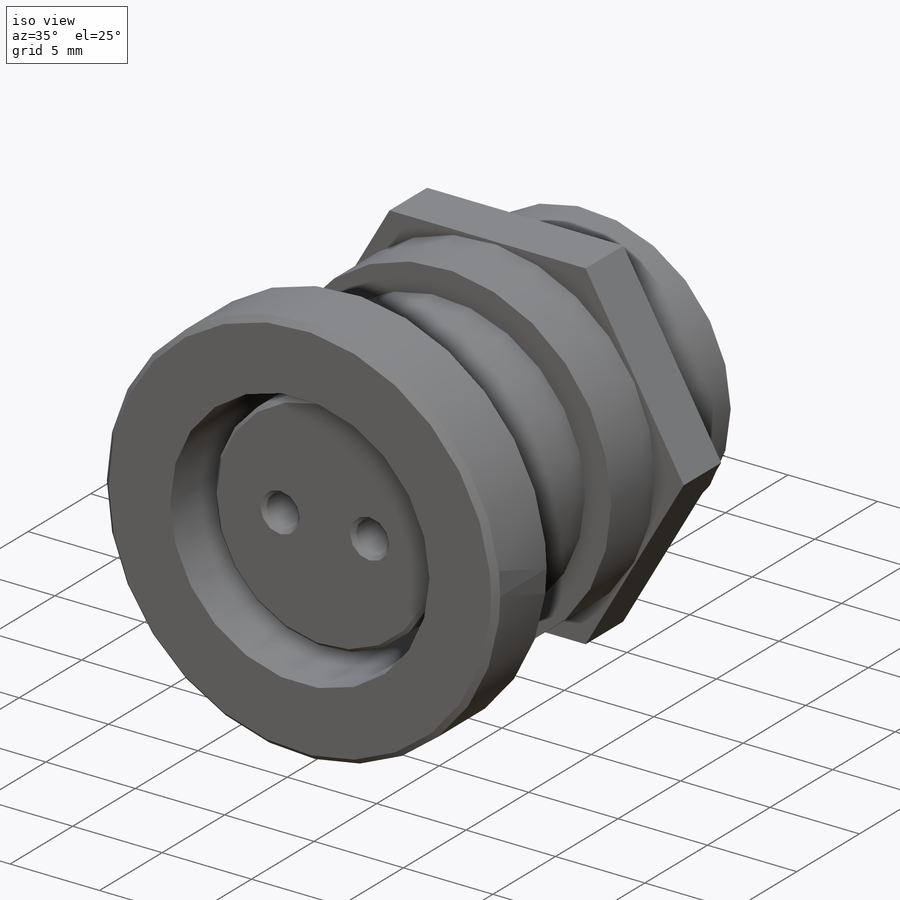
[diagram: iso view]
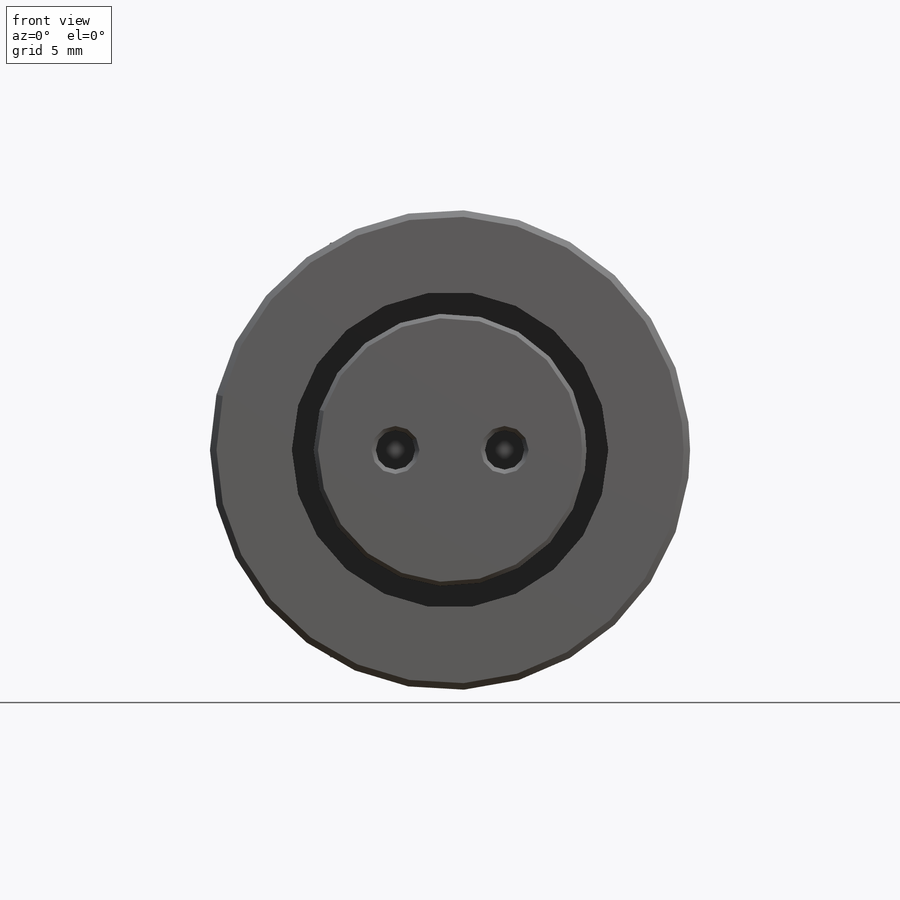
[diagram: front view]
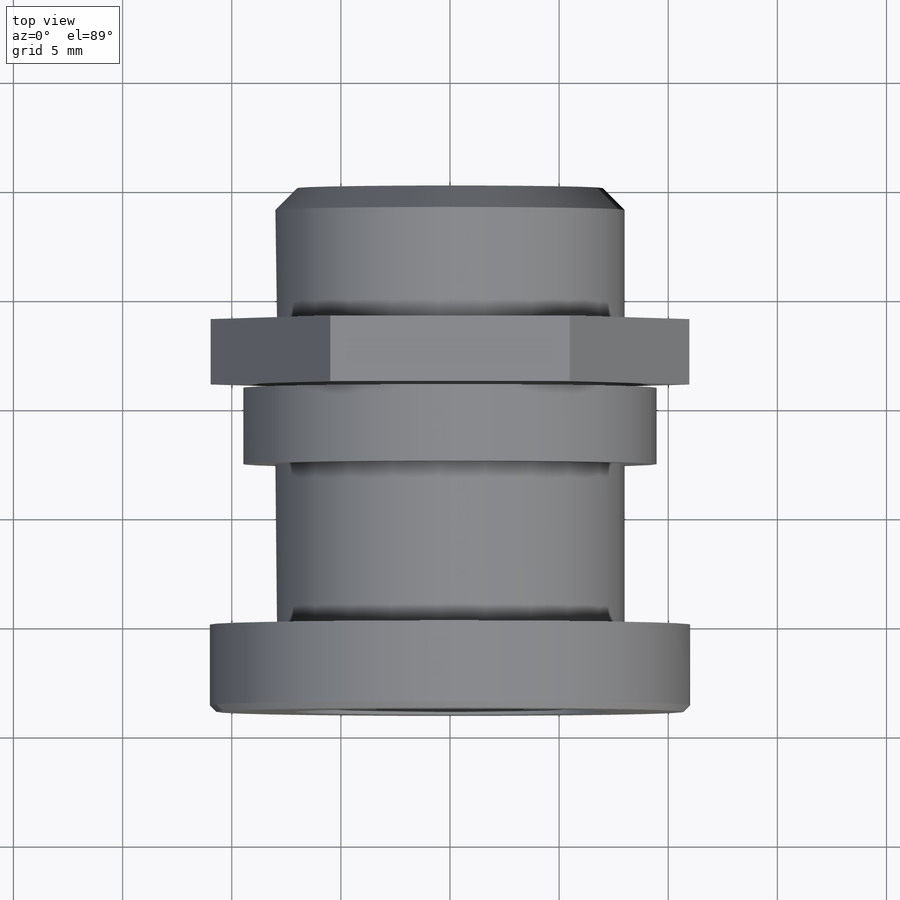
[diagram: top view]
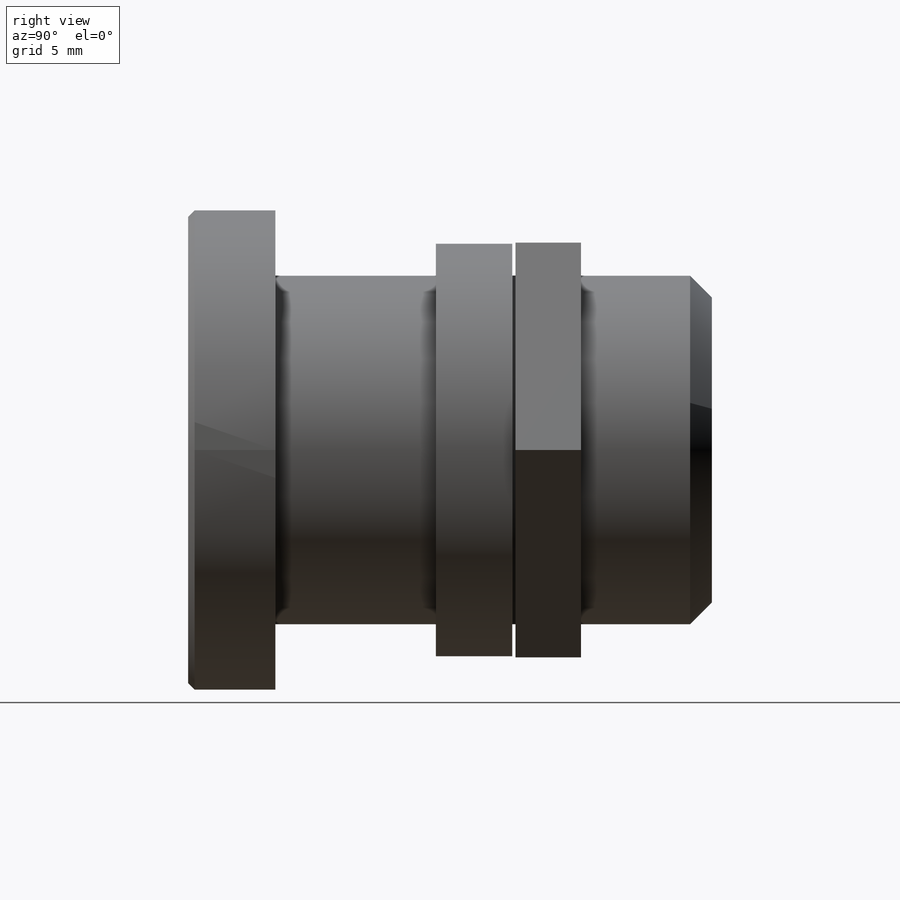
[diagram: right view]
SOLIDWORKS PART (.sldprt)
format: sldprt  version: not decoded by parser v0  size: 252,928 bytes
history: native  units: mm
features: sketch x9, extrude x5, cut_extrude x4, chamfer x4, material x1 (+11 scaffold rows collapsed)
feature tree (34):
  scaffold x11  (default folders/planes/origin — collapsed)
  material  "1060 Alloy"
  sketch  "Sketch1"  dims[D1=~30.836085mm]
  extrude  "Extrude1"  Depth=4mm
  sketch  "Sketch3"  dims[D1=~9.493143mm]
  extrude  "Extrude3"  Depth=20mm
  sketch  "Sketch7"  dims[D1=~7.356853mm]
  cut_extrude  "Cut-Extrude5"  Depth=16mm
  sketch  "Sketch4"  dims[D1=~6.216723mm]
  extrude  "Extrude4"  Depth=14mm
  chamfer  "Chamfer1"  Distance=0.2mm Angle=45deg
  chamfer  "Chamfer3"  Distance=0.3mm Angle=45deg
  sketch  "Sketch5"  dims[D1=~8.328048mm]
  cut_extrude  "Cut-Extrude1"  Depth=1.5mm
  sketch  "Sketch6"  dims[c1.D1=~0.677828mm c1.D3=0.35mm c2.D1=2.5mm c2.D2=2.5mm c2.D3=1.75mm c2.D4=1.75mm]
  cut_extrude  "Cut-Extrude2"  Depth=5mm
  chamfer  "Chamfer4"  Distance=0.2mm Angle=45deg
  sketch  "Sketch8"  dims[D1=~6.422477mm]
  cut_extrude  "Cut-Extrude6"  Depth=2mm
  chamfer  "Chamfer5"  Distance=1mm Angle=45deg
  sketch  "Sketch10"
  extrude  "Extrude6"  Depth=3.5mm
  sketch  "Sketch9"  dims[D1=19.0mm D2=19.0mm]
  extrude  "Extrude5"  Depth=3mm
decode coverage: 21 of 22 modeling features carry decoded parameters
note: ~ marks probable driven/reference dimensions
note: suppression state not decoded; provenance and decode notes live in map.json
